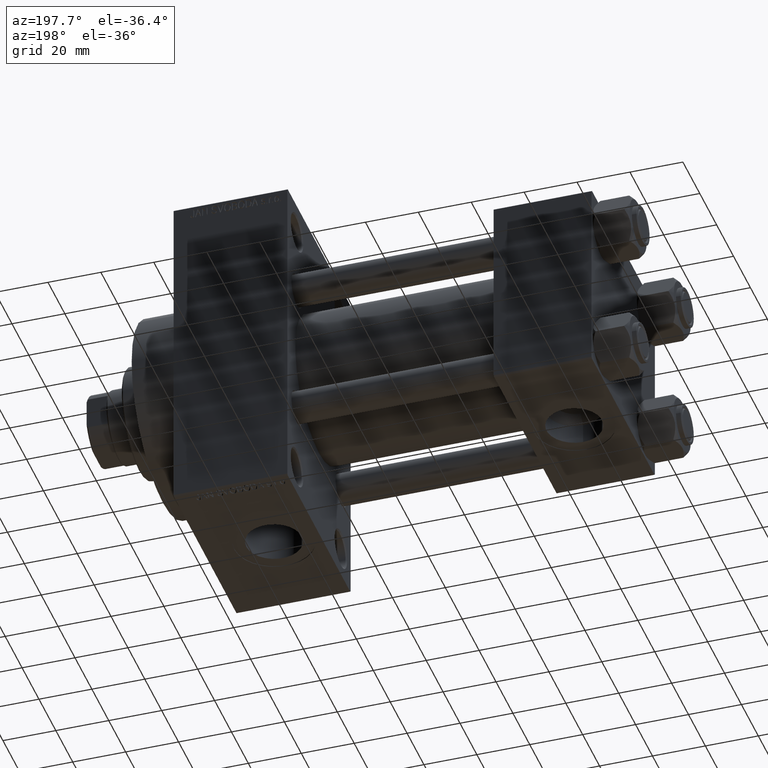
[diagram: clean part render]
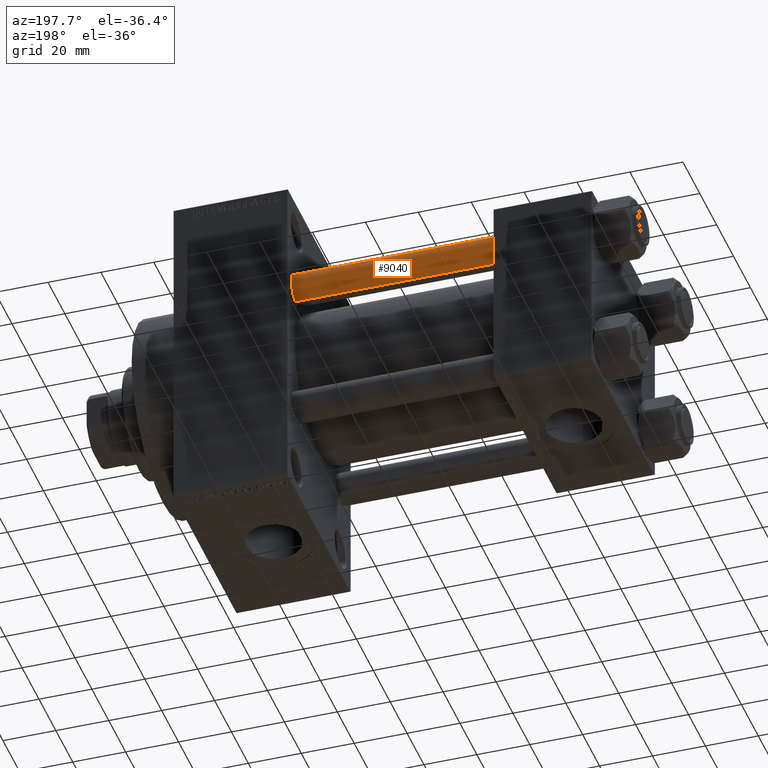
[diagram: same view with one face highlighted and labeled with its STEP entity id]
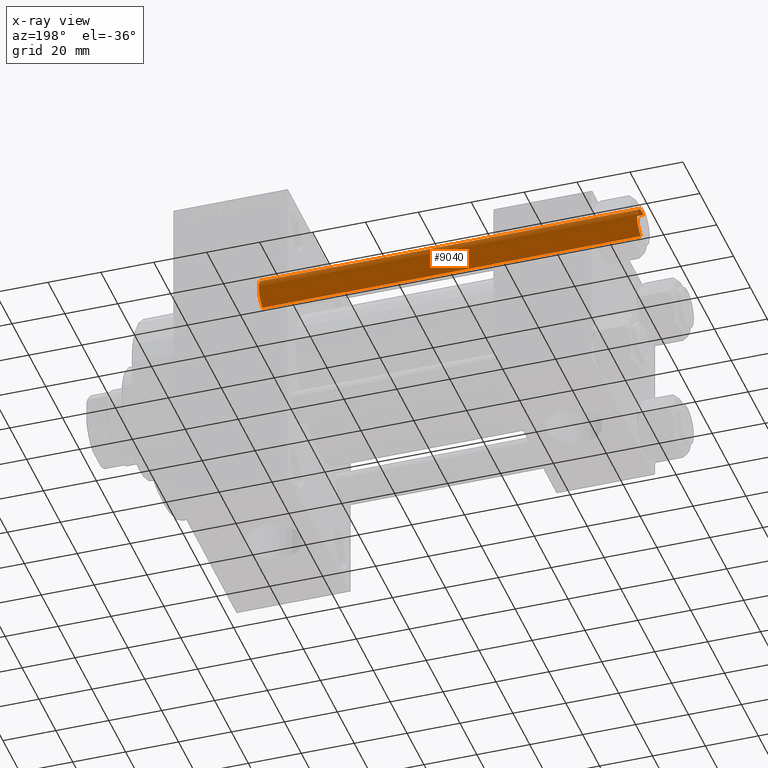
[diagram: x-ray of the same camera — body ghosted, the highlighted face saturated]
A machine part, auxiliary view. The second image highlights one B-rep face of the part: STEP entity #9040.
The next image is the same camera in x-ray: the body ghosted, the highlighted face saturated — about 0% of this face is hidden behind the body in this view.
In plain terms, the highlighted cylindrical surface (edge-blend (fillet) strip) has radius 6 mm, axis along (-1, -0, 0).
Its self-contained STEP definition (entity closure, byte-faithful):
#1334 = CIRCLE ( 'NONE', #11720, 6.000000000000000888 ) ;
#2612 = VECTOR ( 'NONE', #34994, 1000.000000000000000 ) ;
#3119 = CARTESIAN_POINT ( 'NONE',  ( 0.000000000000000000, 0.000000000000000000, 143.5000000000000000 ) ) ;
#5457 = ORIENTED_EDGE ( 'NONE', *, *, #38570, .T. ) ;
#5463 = VERTEX_POINT ( 'NONE', #11494 ) ;
#5729 = AXIS2_PLACEMENT_3D ( 'NONE', #31056, #26572, #11294 ) ;
#7103 = EDGE_LOOP ( 'NONE', ( #8722, #34931, #5457, #12090 ) ) ;
#8722 = ORIENTED_EDGE ( 'NONE', *, *, #14583, .T. ) ;
#9040 = ADVANCED_FACE ( 'NONE', ( #45581 ), #27048, .T. ) ;
#9851 = DIRECTION ( 'NONE',  ( -0.000000000000000000, -0.000000000000000000, 1.000000000000000000 ) ) ;
#11294 = DIRECTION ( 'NONE',  ( -1.000000000000000000, 0.000000000000000000, 0.000000000000000000 ) ) ;
#11494 = CARTESIAN_POINT ( 'NONE',  ( -6.000000000000000888, 0.000000000000000000, 143.5000000000000000 ) ) ;
#11720 = AXIS2_PLACEMENT_3D ( 'NONE', #25342, #9851, #33124 ) ;
#11861 = EDGE_CURVE ( 'NONE', #5463, #16537, #18972, .T. ) ;
#12013 = CARTESIAN_POINT ( 'NONE',  ( 6.000000000000000888, 7.347880794884120722E-16, 143.5000000000000000 ) ) ;
#12090 = ORIENTED_EDGE ( 'NONE', *, *, #11861, .F. ) ;
#12741 = CARTESIAN_POINT ( 'NONE',  ( 6.000000000000000888, 7.347880794884120722E-16, 0.5000000000000004441 ) ) ;
#14583 = EDGE_CURVE ( 'NONE', #5463, #17390, #41096, .T. ) ;
#16537 = VERTEX_POINT ( 'NONE', #32820 ) ;
#17390 = VERTEX_POINT ( 'NONE', #12013 ) ;
#18395 = DIRECTION ( 'NONE',  ( 0.000000000000000000, 0.000000000000000000, -1.000000000000000000 ) ) ;
#18530 = EDGE_CURVE ( 'NONE', #17390, #46121, #41281, .T. ) ;
#18972 = LINE ( 'NONE', #30248, #2612 ) ;
#22299 = VECTOR ( 'NONE', #41038, 1000.000000000000000 ) ;
#25342 = CARTESIAN_POINT ( 'NONE',  ( 0.000000000000000000, 0.000000000000000000, 0.5000000000000004441 ) ) ;
#26572 = DIRECTION ( 'NONE',  ( -0.000000000000000000, -0.000000000000000000, -1.000000000000000000 ) ) ;
#27048 = CYLINDRICAL_SURFACE ( 'NONE', #5729, 6.000000000000000888 ) ;
#29273 = CARTESIAN_POINT ( 'NONE',  ( 6.000000000000000888, 7.347880794884120722E-16, 144.0000000000000000 ) ) ;
#30248 = CARTESIAN_POINT ( 'NONE',  ( -6.000000000000000888, 0.000000000000000000, 144.0000000000000000 ) ) ;
#31056 = CARTESIAN_POINT ( 'NONE',  ( 0.000000000000000000, 0.000000000000000000, 144.0000000000000000 ) ) ;
#32820 = CARTESIAN_POINT ( 'NONE',  ( -6.000000000000000888, 0.000000000000000000, 0.5000000000000004441 ) ) ;
#33124 = DIRECTION ( 'NONE',  ( 1.000000000000000000, 0.000000000000000000, 0.000000000000000000 ) ) ;
#34931 = ORIENTED_EDGE ( 'NONE', *, *, #18530, .T. ) ;
#34994 = DIRECTION ( 'NONE',  ( -0.000000000000000000, -0.000000000000000000, -1.000000000000000000 ) ) ;
#38570 = EDGE_CURVE ( 'NONE', #46121, #16537, #1334, .T. ) ;
#41038 = DIRECTION ( 'NONE',  ( -0.000000000000000000, -0.000000000000000000, -1.000000000000000000 ) ) ;
#41096 = CIRCLE ( 'NONE', #45102, 6.000000000000000888 ) ;
#41281 = LINE ( 'NONE', #29273, #22299 ) ;
#45102 = AXIS2_PLACEMENT_3D ( 'NONE', #3119, #18395, #45181 ) ;
#45181 = DIRECTION ( 'NONE',  ( 1.000000000000000000, 0.000000000000000000, 0.000000000000000000 ) ) ;
#45581 = FACE_OUTER_BOUND ( 'NONE', #7103, .T. ) ;
#46121 = VERTEX_POINT ( 'NONE', #12741 ) ;